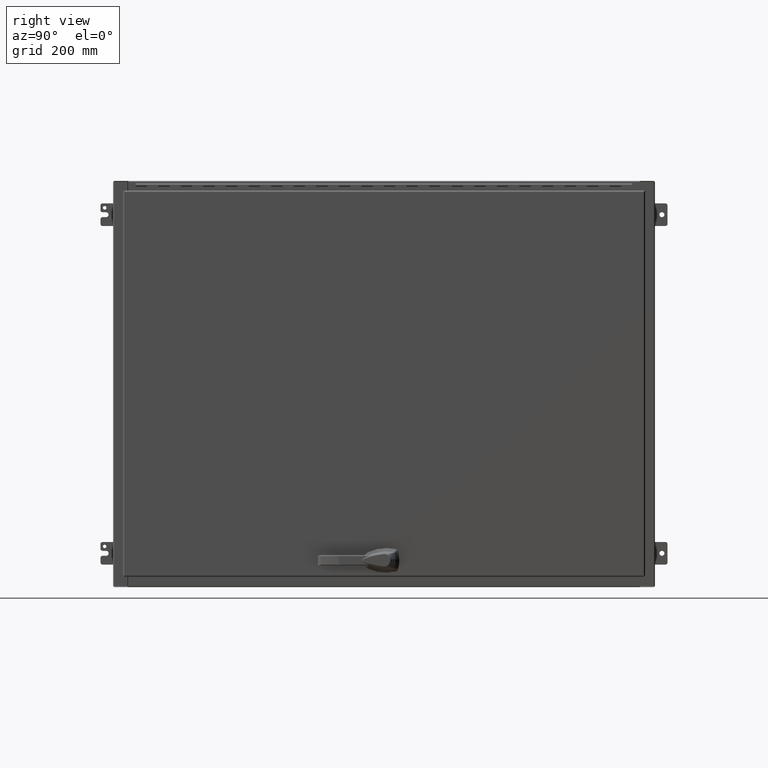
[diagram: clean part render]
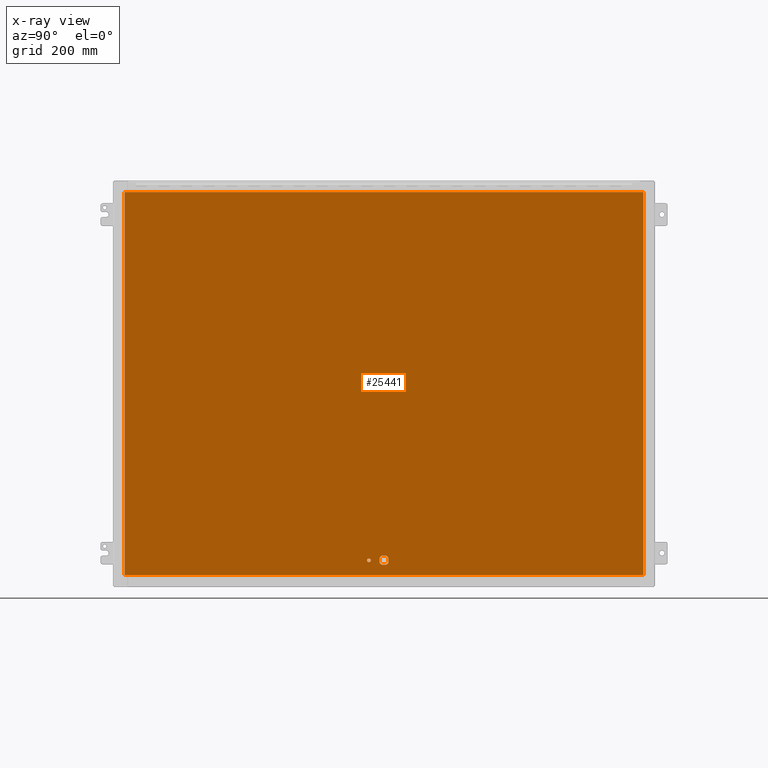
[diagram: x-ray — body ghosted, one internal face saturated and labeled with its STEP entity id]
A machine part, right view, then the same camera in x-ray: the body is ghosted and one INTERNAL B-rep face — a face not visible from any outside direction — is saturated and labeled: STEP entity #25441.
In plain terms, the highlighted planar face has unit normal (1, 0, 0).
Its self-contained STEP definition (entity closure, byte-faithful):
#93 = CIRCLE ( 'NONE', #47356, 0.4425000000000000044 ) ;
#1825 = EDGE_CURVE ( 'NONE', #51793, #107584, #73722, .T. ) ;
#2794 = CIRCLE ( 'NONE', #40726, 0.1669999999999998985 ) ;
#3737 = ORIENTED_EDGE ( 'NONE', *, *, #1825, .T. ) ;
#4770 = ORIENTED_EDGE ( 'NONE', *, *, #60198, .F. ) ;
#4962 = VERTEX_POINT ( 'NONE', #96887 ) ;
#6919 = VERTEX_POINT ( 'NONE', #101454 ) ;
#7715 = LINE ( 'NONE', #99303, #83136 ) ;
#7842 = EDGE_CURVE ( 'NONE', #4962, #46435, #71517, .T. ) ;
#7923 = LINE ( 'NONE', #78086, #83328 ) ;
#8807 = CARTESIAN_POINT ( 'NONE',  ( 15.82345906378899514, -17.13799999999996260, 0.3955000000000010729 ) ) ;
#8818 = EDGE_CURVE ( 'NONE', #6919, #64819, #93, .T. ) ;
#11457 = CARTESIAN_POINT ( 'NONE',  ( 15.42654093621102795, -17.13799999999996260, -0.3954999999999995741 ) ) ;
#12490 = ORIENTED_EDGE ( 'NONE', *, *, #16781, .F. ) ;
#15067 = DIRECTION ( 'NONE',  ( 5.506118877128139871E-15, -0.0000000000000000000, -1.000000000000000000 ) ) ;
#15210 = VERTEX_POINT ( 'NONE', #8807 ) ;
#15715 = EDGE_CURVE ( 'NONE', #6919, #80568, #7923, .T. ) ;
#16781 = EDGE_CURVE ( 'NONE', #74862, #64819, #7715, .T. ) ;
#17680 = DIRECTION ( 'NONE',  ( 0.0000000000000000000, -1.000000000000000000, 0.0000000000000000000 ) ) ;
#18732 = EDGE_LOOP ( 'NONE', ( #73736, #59914, #4770, #24305 ) ) ;
#19060 = CARTESIAN_POINT ( 'NONE',  ( 15.62500000000001066, -17.13799999999996260, 1.434027721752999771E-15 ) ) ;
#20864 = LINE ( 'NONE', #29972, #40124 ) ;
#20953 = CARTESIAN_POINT ( 'NONE',  ( -17.00499999999999545, -17.13799999999995194, 22.98250000000000171 ) ) ;
#22651 = VERTEX_POINT ( 'NONE', #106098 ) ;
#24305 = ORIENTED_EDGE ( 'NONE', *, *, #94740, .F. ) ;
#24474 = LINE ( 'NONE', #60483, #103847 ) ;
#25229 = DIRECTION ( 'NONE',  ( 0.0000000000000000000, -1.000000000000000000, 0.0000000000000000000 ) ) ;
#25441 = ADVANCED_FACE ( 'NONE', ( #96707, #41954, #80252 ), #84981, .F. ) ;
#26058 = CARTESIAN_POINT ( 'NONE',  ( -17.00499999999998835, -17.13799999999996260, -22.98250000000000171 ) ) ;
#27042 = EDGE_CURVE ( 'NONE', #36897, #74358, #102870, .T. ) ;
#28750 = VERTEX_POINT ( 'NONE', #34653 ) ;
#29972 = CARTESIAN_POINT ( 'NONE',  ( -17.00499999999998835, -17.13799999999996260, -22.98250000000000171 ) ) ;
#30505 = CIRCLE ( 'NONE', #100222, 0.4425000000000000044 ) ;
#33790 = CARTESIAN_POINT ( 'NONE',  ( 15.42654093621102618, -17.13799999999996260, 0.3954999999999976867 ) ) ;
#34303 = CARTESIAN_POINT ( 'NONE',  ( 15.42654093621103328, -17.13799999999996260, 0.3954999999999976867 ) ) ;
#34329 = LINE ( 'NONE', #51336, #44027 ) ;
#34653 = CARTESIAN_POINT ( 'NONE',  ( -17.00499999999998835, -17.13799999999996260, -22.98250000000000171 ) ) ;
#35264 = DIRECTION ( 'NONE',  ( 0.0000000000000000000, -0.0000000000000000000, -1.000000000000000000 ) ) ;
#35779 = DIRECTION ( 'NONE',  ( 0.0000000000000000000, -1.000000000000000000, 0.0000000000000000000 ) ) ;
#35976 = ORIENTED_EDGE ( 'NONE', *, *, #58532, .F. ) ;
#36897 = VERTEX_POINT ( 'NONE', #66825 ) ;
#39169 = CARTESIAN_POINT ( 'NONE',  ( 15.62500000000001066, -17.13799999999996260, 1.434027721752999771E-15 ) ) ;
#40124 = VECTOR ( 'NONE', #46468, 39.37007874015748143 ) ;
#40726 = AXIS2_PLACEMENT_3D ( 'NONE', #79705, #108780, #47609 ) ;
#41954 = FACE_OUTER_BOUND ( 'NONE', #18732, .T. ) ;
#44027 = VECTOR ( 'NONE', #85060, 39.37007874015748143 ) ;
#44691 = ORIENTED_EDGE ( 'NONE', *, *, #7842, .T. ) ;
#46435 = VERTEX_POINT ( 'NONE', #94155 ) ;
#46468 = DIRECTION ( 'NONE',  ( 1.000000000000000000, 0.0000000000000000000, 0.0000000000000000000 ) ) ;
#46691 = EDGE_LOOP ( 'NONE', ( #50463, #59810, #60635, #110534, #12490, #66847, #35976, #3737 ) ) ;
#47356 = AXIS2_PLACEMENT_3D ( 'NONE', #66733, #17680, #60567 ) ;
#47609 = DIRECTION ( 'NONE',  ( 0.0000000000000000000, 0.0000000000000000000, -1.000000000000000000 ) ) ;
#50463 = ORIENTED_EDGE ( 'NONE', *, *, #94567, .F. ) ;
#50871 = CARTESIAN_POINT ( 'NONE',  ( -17.00499999999998835, -17.13799999999996260, -22.98250000000000171 ) ) ;
#51243 = DIRECTION ( 'NONE',  ( 0.0000000000000000000, -0.0000000000000000000, -1.000000000000000000 ) ) ;
#51336 = CARTESIAN_POINT ( 'NONE',  ( 15.22950000000000870, -17.13799999999996260, -0.1984590637889787901 ) ) ;
#51793 = VERTEX_POINT ( 'NONE', #33790 ) ;
#53601 = VECTOR ( 'NONE', #55897, 39.37007874015748143 ) ;
#55897 = DIRECTION ( 'NONE',  ( -1.000000000000000000, -0.0000000000000000000, -0.0000000000000000000 ) ) ;
#58532 = EDGE_CURVE ( 'NONE', #51793, #15210, #99964, .T. ) ;
#59810 = ORIENTED_EDGE ( 'NONE', *, *, #94058, .T. ) ;
#59914 = ORIENTED_EDGE ( 'NONE', *, *, #83187, .F. ) ;
#60198 = EDGE_CURVE ( 'NONE', #28750, #22651, #20864, .T. ) ;
#60483 = CARTESIAN_POINT ( 'NONE',  ( 16.94300000000000850, -17.13799999999996260, -22.98250000000000171 ) ) ;
#60567 = DIRECTION ( 'NONE',  ( 0.0000000000000000000, 0.0000000000000000000, -1.000000000000000000 ) ) ;
#60635 = ORIENTED_EDGE ( 'NONE', *, *, #15715, .F. ) ;
#61243 = DIRECTION ( 'NONE',  ( -1.000000000000000000, -0.0000000000000000000, 0.0000000000000000000 ) ) ;
#61636 = CIRCLE ( 'NONE', #94409, 0.4425000000000000044 ) ;
#64438 = DIRECTION ( 'NONE',  ( 0.0000000000000000000, -1.000000000000000000, 0.0000000000000000000 ) ) ;
#64446 = VECTOR ( 'NONE', #35264, 39.37007874015748143 ) ;
#64819 = VERTEX_POINT ( 'NONE', #92199 ) ;
#66733 = CARTESIAN_POINT ( 'NONE',  ( 15.62500000000001066, -17.13799999999996260, 1.434027721752999771E-15 ) ) ;
#66825 = CARTESIAN_POINT ( 'NONE',  ( 16.94300000000002626, -17.13799999999996260, 22.98249999999998394 ) ) ;
#66847 = ORIENTED_EDGE ( 'NONE', *, *, #79938, .T. ) ;
#67240 = CARTESIAN_POINT ( 'NONE',  ( 15.62500000000001066, -17.13799999999996260, 1.434027721752999771E-15 ) ) ;
#67351 = EDGE_LOOP ( 'NONE', ( #75880, #44691 ) ) ;
#68389 = DIRECTION ( 'NONE',  ( 1.000000000000000000, -0.0000000000000000000, 0.0000000000000000000 ) ) ;
#71517 = CIRCLE ( 'NONE', #75810, 0.1669999999999998985 ) ;
#72123 = DIRECTION ( 'NONE',  ( 0.0000000000000000000, 0.0000000000000000000, -1.000000000000000000 ) ) ;
#72817 = EDGE_CURVE ( 'NONE', #46435, #4962, #2794, .T. ) ;
#73722 = CIRCLE ( 'NONE', #90595, 0.4425000000000000044 ) ;
#73736 = ORIENTED_EDGE ( 'NONE', *, *, #27042, .F. ) ;
#74358 = VERTEX_POINT ( 'NONE', #20953 ) ;
#74862 = VERTEX_POINT ( 'NONE', #82829 ) ;
#75810 = AXIS2_PLACEMENT_3D ( 'NONE', #100503, #82950, #100144 ) ;
#75880 = ORIENTED_EDGE ( 'NONE', *, *, #72817, .T. ) ;
#75890 = VERTEX_POINT ( 'NONE', #92927 ) ;
#78086 = CARTESIAN_POINT ( 'NONE',  ( 15.82345906378898626, -17.13799999999996260, -0.3954999999999984084 ) ) ;
#79705 = CARTESIAN_POINT ( 'NONE',  ( 15.62500000000001066, -17.13799999999996260, -1.337999999999998302 ) ) ;
#79938 = EDGE_CURVE ( 'NONE', #74862, #15210, #61636, .T. ) ;
#80252 = FACE_BOUND ( 'NONE', #67351, .T. ) ;
#80296 = DIRECTION ( 'NONE',  ( 0.0000000000000000000, -1.000000000000000000, 0.0000000000000000000 ) ) ;
#80568 = VERTEX_POINT ( 'NONE', #11457 ) ;
#82829 = CARTESIAN_POINT ( 'NONE',  ( 16.02050000000000907, -17.13799999999996260, 0.1984590637889859233 ) ) ;
#82950 = DIRECTION ( 'NONE',  ( 0.0000000000000000000, -1.000000000000000000, 0.0000000000000000000 ) ) ;
#83136 = VECTOR ( 'NONE', #15067, 39.37007874015748143 ) ;
#83187 = EDGE_CURVE ( 'NONE', #22651, #36897, #24474, .T. ) ;
#83328 = VECTOR ( 'NONE', #61243, 39.37007874015748143 ) ;
#84981 = PLANE ( 'NONE',  #90959 ) ;
#85060 = DIRECTION ( 'NONE',  ( -0.0000000000000000000, -0.0000000000000000000, 1.000000000000000000 ) ) ;
#86146 = DIRECTION ( 'NONE',  ( -0.0000000000000000000, 0.0000000000000000000, 1.000000000000000000 ) ) ;
#90595 = AXIS2_PLACEMENT_3D ( 'NONE', #19060, #80296, #105167 ) ;
#90959 = AXIS2_PLACEMENT_3D ( 'NONE', #50871, #25229, #51243 ) ;
#91767 = VECTOR ( 'NONE', #68389, 39.37007874015748143 ) ;
#91862 = CARTESIAN_POINT ( 'NONE',  ( -17.00499999999998835, -17.13799999999996260, 22.98250000000000171 ) ) ;
#92199 = CARTESIAN_POINT ( 'NONE',  ( 16.02050000000000907, -17.13799999999996260, -0.1984590637889809550 ) ) ;
#92927 = CARTESIAN_POINT ( 'NONE',  ( 15.22950000000000870, -17.13799999999996260, -0.1984590637889787346 ) ) ;
#94058 = EDGE_CURVE ( 'NONE', #75890, #80568, #30505, .T. ) ;
#94155 = CARTESIAN_POINT ( 'NONE',  ( 15.62500000000001066, -17.13799999999996260, -1.504999999999998339 ) ) ;
#94409 = AXIS2_PLACEMENT_3D ( 'NONE', #39169, #64438, #100337 ) ;
#94567 = EDGE_CURVE ( 'NONE', #75890, #107584, #34329, .T. ) ;
#94740 = EDGE_CURVE ( 'NONE', #74358, #28750, #105485, .T. ) ;
#96707 = FACE_BOUND ( 'NONE', #46691, .T. ) ;
#96887 = CARTESIAN_POINT ( 'NONE',  ( 15.62500000000001066, -17.13799999999996260, -1.170999999999998487 ) ) ;
#97972 = CARTESIAN_POINT ( 'NONE',  ( 15.22950000000000870, -17.13799999999996260, 0.1984590637889815379 ) ) ;
#99303 = CARTESIAN_POINT ( 'NONE',  ( 16.02050000000000907, -17.13799999999996260, 0.1984590637889862563 ) ) ;
#99964 = LINE ( 'NONE', #34303, #91767 ) ;
#100144 = DIRECTION ( 'NONE',  ( 0.0000000000000000000, 0.0000000000000000000, -1.000000000000000000 ) ) ;
#100222 = AXIS2_PLACEMENT_3D ( 'NONE', #67240, #35779, #72123 ) ;
#100337 = DIRECTION ( 'NONE',  ( 0.0000000000000000000, 0.0000000000000000000, -1.000000000000000000 ) ) ;
#100503 = CARTESIAN_POINT ( 'NONE',  ( 15.62500000000001066, -17.13799999999996260, -1.337999999999998302 ) ) ;
#101454 = CARTESIAN_POINT ( 'NONE',  ( 15.82345906378898981, -17.13799999999996260, -0.3954999999999984084 ) ) ;
#102870 = LINE ( 'NONE', #91862, #53601 ) ;
#103847 = VECTOR ( 'NONE', #86146, 39.37007874015748143 ) ;
#105167 = DIRECTION ( 'NONE',  ( 0.0000000000000000000, 0.0000000000000000000, -1.000000000000000000 ) ) ;
#105485 = LINE ( 'NONE', #26058, #64446 ) ;
#106098 = CARTESIAN_POINT ( 'NONE',  ( 16.94300000000000850, -17.13799999999996615, -22.98250000000000526 ) ) ;
#107584 = VERTEX_POINT ( 'NONE', #97972 ) ;
#108780 = DIRECTION ( 'NONE',  ( 0.0000000000000000000, -1.000000000000000000, 0.0000000000000000000 ) ) ;
#110534 = ORIENTED_EDGE ( 'NONE', *, *, #8818, .T. ) ;